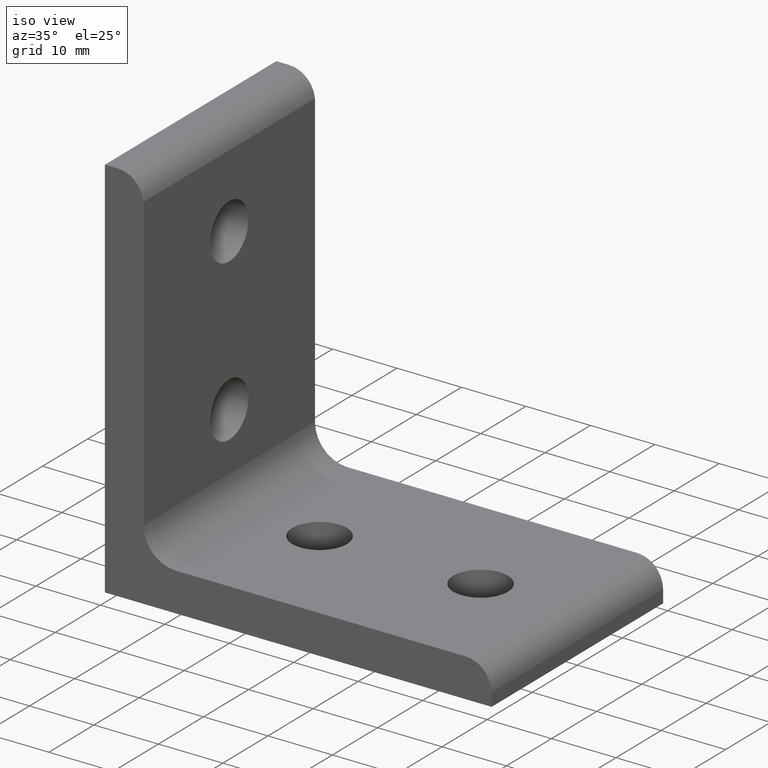
[diagram: clean part render]
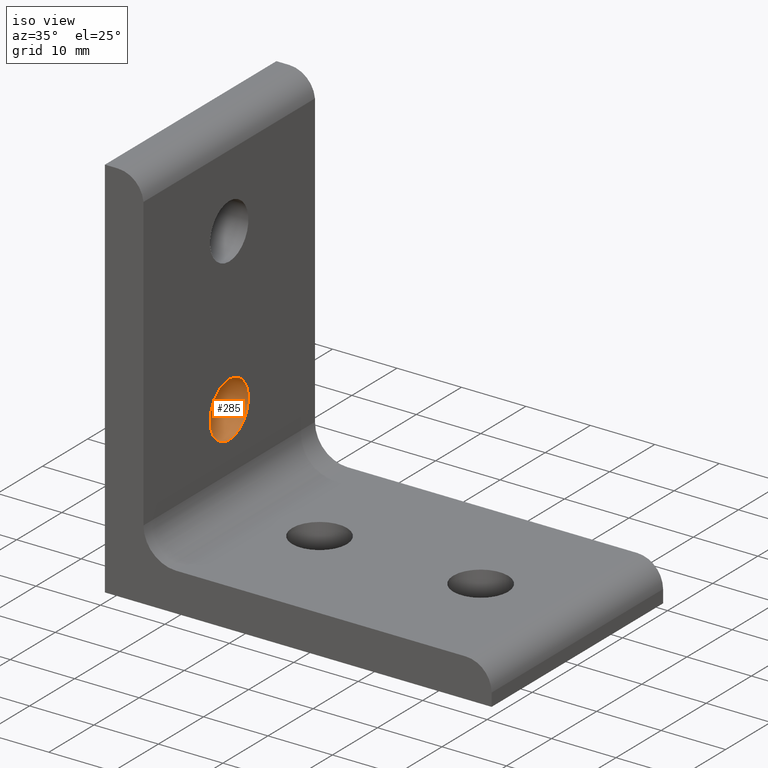
[diagram: same view with one face highlighted and labeled with its STEP entity id]
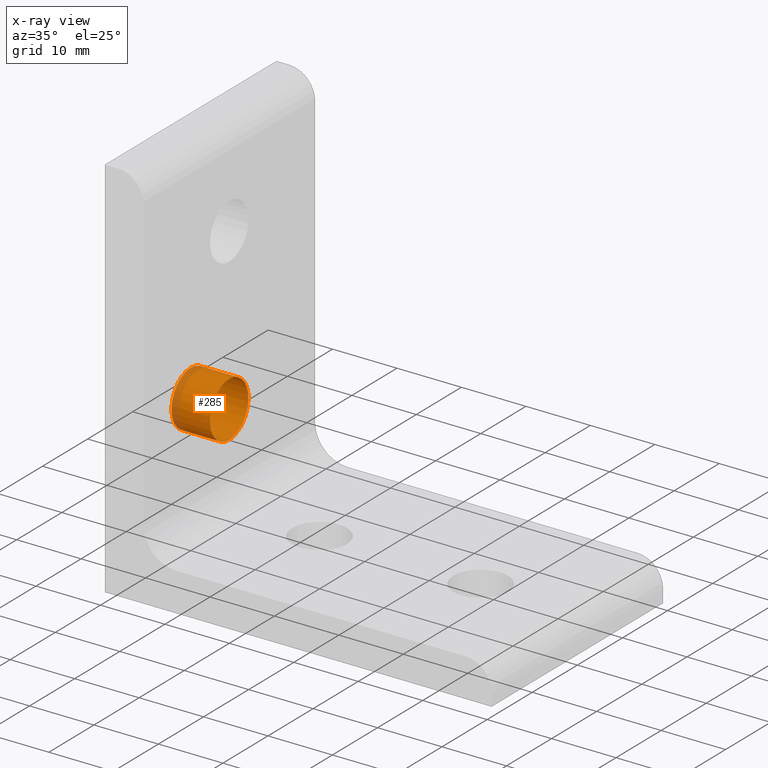
[diagram: x-ray of the same camera — body ghosted, the highlighted face saturated]
A machine part, iso view. The second image highlights one B-rep face of the part: STEP entity #285.
The next image is the same camera in x-ray: the body ghosted, the highlighted face saturated — about 11% of this face is hidden behind the body in this view.
In plain terms, the highlighted cylindrical surface (bore or boss wall) has radius 4.25 mm, axis along (-1, 0, 0).
Its self-contained STEP definition (entity closure, byte-faithful):
#26=FACE_BOUND('',#89,.T.);
#34=CIRCLE('',#300,4.24999905648292);
#38=CIRCLE('',#307,4.24999905648292);
#47=CYLINDRICAL_SURFACE('',#316,4.24999905648292);
#62=FACE_OUTER_BOUND('',#88,.T.);
#88=EDGE_LOOP('',(#261));
#89=EDGE_LOOP('',(#262));
#147=VERTEX_POINT('',#438);
#155=VERTEX_POINT('',#460);
#177=EDGE_CURVE('',#147,#147,#34,.T.);
#188=EDGE_CURVE('',#155,#155,#38,.T.);
#261=ORIENTED_EDGE('',*,*,#177,.F.);
#262=ORIENTED_EDGE('',*,*,#188,.T.);
#285=ADVANCED_FACE('',(#62,#26),#47,.F.);
#300=AXIS2_PLACEMENT_3D('',#439,#355,#356);
#307=AXIS2_PLACEMENT_3D('',#461,#376,#377);
#316=AXIS2_PLACEMENT_3D('',#474,#396,#397);
#355=DIRECTION('center_axis',(-1.,0.,0.));
#356=DIRECTION('ref_axis',(0.,0.,-1.));
#376=DIRECTION('center_axis',(-1.,0.,0.));
#377=DIRECTION('ref_axis',(0.,0.,-1.));
#396=DIRECTION('center_axis',(-1.,0.,0.));
#397=DIRECTION('ref_axis',(0.,0.,-1.));
#438=CARTESIAN_POINT('',(5.98290120221009,-4.218076355E-6,24.2499946164029));
#439=CARTESIAN_POINT('Origin',(5.98290120221009,-4.218076356E-6,19.99999555992));
#460=CARTESIAN_POINT('',(0.,-4.218076355E-6,24.2499946164029));
#461=CARTESIAN_POINT('Origin',(0.,-4.218076356E-6,19.99999555992));
#474=CARTESIAN_POINT('Origin',(0.,-4.218076356E-6,19.99999555992));